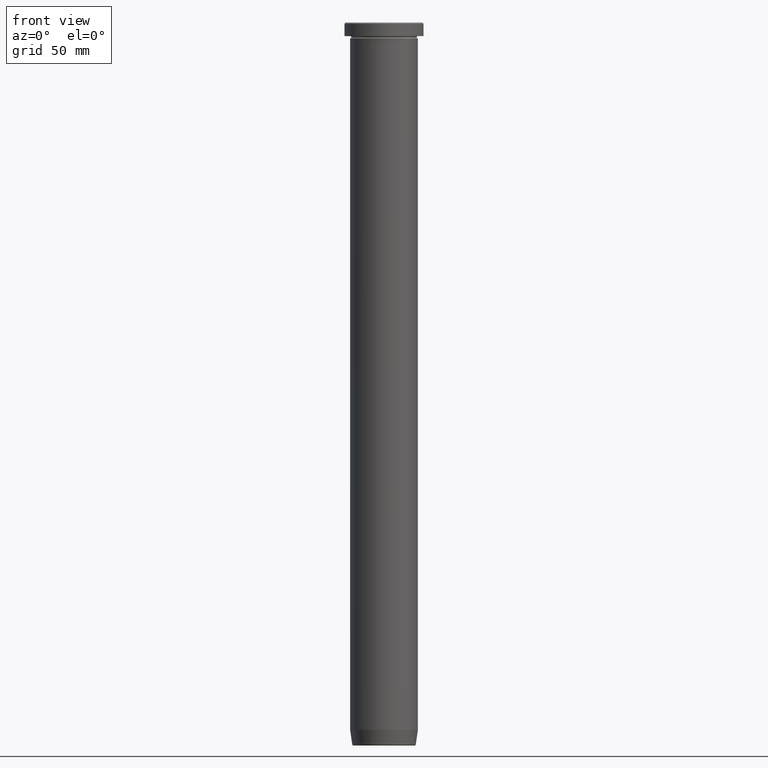
[diagram: clean part render]
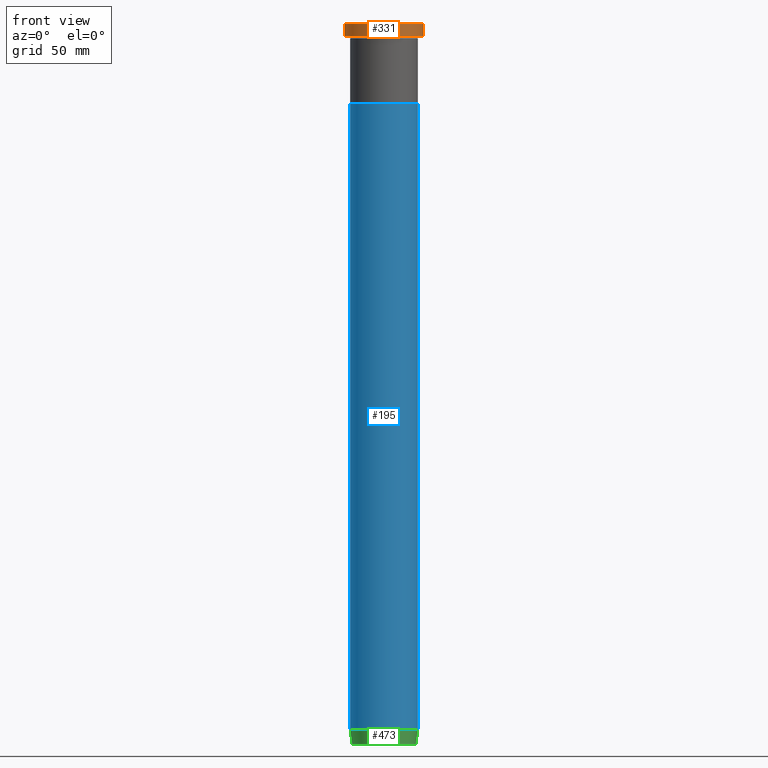
[diagram: same view with three faces highlighted in distinct colors, each labeled with its STEP entity id]
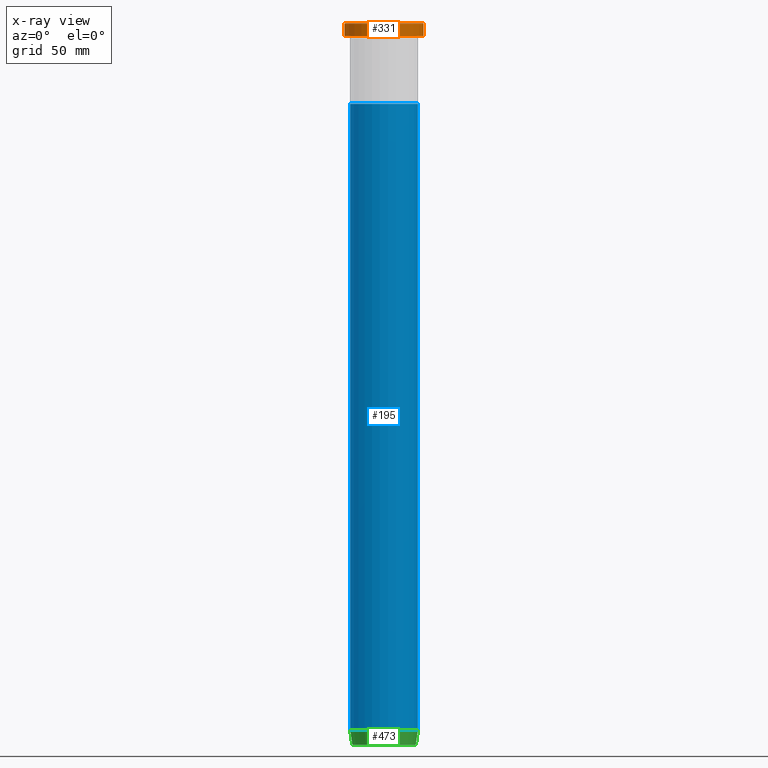
[diagram: x-ray of the same camera — body ghosted, the three highlighted faces saturated]
A machine part, front view with three faces highlighted in distinct colors.
The next image is the same camera in x-ray (body ghosted, the three faces saturated) — at least one of them is partly hidden behind the body in this view.
Their STEP definitions:

[orange] entity #331 — the highlighted cylindrical surface (partial cylindrical patch) has radius 17.5 mm, axis along (-0, -0, 1).
#28 = EDGE_CURVE ( 'NONE', #579, #341, #481, .T. ) ;
#34 = ORIENTED_EDGE ( 'NONE', *, *, #387, .T. ) ;
#40 = LINE ( 'NONE', #320, #163 ) ;
#64 = CARTESIAN_POINT ( 'NONE',  ( -17.50000000000000000, 2.143131898507868248E-15, 0.000000000000000000 ) ) ;
#69 = CARTESIAN_POINT ( 'NONE',  ( -17.50000000000000000, 2.143131898507868248E-15, -5.999999999999999112 ) ) ;
#79 = VERTEX_POINT ( 'NONE', #92 ) ;
#80 = AXIS2_PLACEMENT_3D ( 'NONE', #358, #399, #538 ) ;
#92 = CARTESIAN_POINT ( 'NONE',  ( 17.50000000000000000, 0.000000000000000000, -0.5000000000000073275 ) ) ;
#118 = EDGE_LOOP ( 'NONE', ( #369, #34, #392, #541 ) ) ;
#155 = DIRECTION ( 'NONE',  ( 1.000000000000000000, 0.000000000000000000, 0.000000000000000000 ) ) ;
#163 = VECTOR ( 'NONE', #406, 1000.000000000000000 ) ;
#169 = DIRECTION ( 'NONE',  ( -0.000000000000000000, -0.000000000000000000, 1.000000000000000000 ) ) ;
#180 = FACE_OUTER_BOUND ( 'NONE', #118, .T. ) ;
#186 = CYLINDRICAL_SURFACE ( 'NONE', #198, 17.50000000000000000 ) ;
#198 = AXIS2_PLACEMENT_3D ( 'NONE', #550, #251, #290 ) ;
#246 = CARTESIAN_POINT ( 'NONE',  ( 17.50000000000000000, 0.000000000000000000, -5.999999999999999112 ) ) ;
#251 = DIRECTION ( 'NONE',  ( -0.000000000000000000, -0.000000000000000000, 1.000000000000000000 ) ) ;
#272 = DIRECTION ( 'NONE',  ( 0.000000000000000000, 0.000000000000000000, -1.000000000000000000 ) ) ;
#290 = DIRECTION ( 'NONE',  ( 1.000000000000000000, 0.000000000000000000, 0.000000000000000000 ) ) ;
#315 = CIRCLE ( 'NONE', #586, 17.50000000000000000 ) ;
#320 = CARTESIAN_POINT ( 'NONE',  ( 17.50000000000000000, 0.000000000000000000, 0.000000000000000000 ) ) ;
#331 = ADVANCED_FACE ( 'NONE', ( #180 ), #186, .T. ) ;
#341 = VERTEX_POINT ( 'NONE', #380 ) ;
#344 = VERTEX_POINT ( 'NONE', #246 ) ;
#358 = CARTESIAN_POINT ( 'NONE',  ( 0.000000000000000000, 0.000000000000000000, -5.999999999999999112 ) ) ;
#363 = CARTESIAN_POINT ( 'NONE',  ( 0.000000000000000000, 0.000000000000000000, -0.5000000000000073275 ) ) ;
#369 = ORIENTED_EDGE ( 'NONE', *, *, #28, .F. ) ;
#380 = CARTESIAN_POINT ( 'NONE',  ( -17.50000000000000000, 2.143131898507868248E-15, -0.5000000000000073275 ) ) ;
#387 = EDGE_CURVE ( 'NONE', #579, #344, #453, .T. ) ;
#392 = ORIENTED_EDGE ( 'NONE', *, *, #595, .T. ) ;
#399 = DIRECTION ( 'NONE',  ( -0.000000000000000000, -0.000000000000000000, 1.000000000000000000 ) ) ;
#406 = DIRECTION ( 'NONE',  ( -0.000000000000000000, -0.000000000000000000, 1.000000000000000000 ) ) ;
#409 = VECTOR ( 'NONE', #169, 1000.000000000000000 ) ;
#453 = CIRCLE ( 'NONE', #80, 17.50000000000000000 ) ;
#481 = LINE ( 'NONE', #64, #409 ) ;
#538 = DIRECTION ( 'NONE',  ( 1.000000000000000000, 0.000000000000000000, 0.000000000000000000 ) ) ;
#541 = ORIENTED_EDGE ( 'NONE', *, *, #599, .T. ) ;
#550 = CARTESIAN_POINT ( 'NONE',  ( 0.000000000000000000, 0.000000000000000000, 0.000000000000000000 ) ) ;
#579 = VERTEX_POINT ( 'NONE', #69 ) ;
#586 = AXIS2_PLACEMENT_3D ( 'NONE', #363, #272, #155 ) ;
#595 = EDGE_CURVE ( 'NONE', #344, #79, #40, .T. ) ;
#599 = EDGE_CURVE ( 'NONE', #79, #341, #315, .T. ) ;

[blue] entity #195 — the highlighted cylindrical surface (edge-blend (fillet) strip) has radius 15 mm, axis along (-0, -0, 1).
#3 = DIRECTION ( 'NONE',  ( -0.000000000000000000, -0.000000000000000000, 1.000000000000000000 ) ) ;
#18 = DIRECTION ( 'NONE',  ( -0.000000000000000000, -0.000000000000000000, 1.000000000000000000 ) ) ;
#65 = CARTESIAN_POINT ( 'NONE',  ( 15.00000000000000000, 0.000000000000000000, 0.000000000000000000 ) ) ;
#83 = CARTESIAN_POINT ( 'NONE',  ( 0.000000000000000000, 0.000000000000000000, -36.00000000000000000 ) ) ;
#107 = CARTESIAN_POINT ( 'NONE',  ( 15.00000000000000000, 0.000000000000000000, -36.00000000000000000 ) ) ;
#110 = CARTESIAN_POINT ( 'NONE',  ( -15.00000000000000000, 1.836970198721029589E-15, -312.9999999999999432 ) ) ;
#141 = DIRECTION ( 'NONE',  ( 1.000000000000000000, 0.000000000000000000, 0.000000000000000000 ) ) ;
#157 = ORIENTED_EDGE ( 'NONE', *, *, #497, .T. ) ;
#158 = ORIENTED_EDGE ( 'NONE', *, *, #185, .F. ) ;
#166 = VERTEX_POINT ( 'NONE', #110 ) ;
#173 = VERTEX_POINT ( 'NONE', #107 ) ;
#177 = ORIENTED_EDGE ( 'NONE', *, *, #261, .T. ) ;
#182 = DIRECTION ( 'NONE',  ( -0.000000000000000000, -0.000000000000000000, 1.000000000000000000 ) ) ;
#185 = EDGE_CURVE ( 'NONE', #166, #312, #200, .T. ) ;
#195 = ADVANCED_FACE ( 'NONE', ( #474 ), #206, .T. ) ;
#200 = LINE ( 'NONE', #376, #321 ) ;
#206 = CYLINDRICAL_SURFACE ( 'NONE', #437, 15.00000000000000000 ) ;
#232 = AXIS2_PLACEMENT_3D ( 'NONE', #83, #182, #451 ) ;
#236 = VERTEX_POINT ( 'NONE', #249 ) ;
#238 = DIRECTION ( 'NONE',  ( 1.000000000000000000, 0.000000000000000000, 0.000000000000000000 ) ) ;
#245 = DIRECTION ( 'NONE',  ( -0.000000000000000000, -0.000000000000000000, 1.000000000000000000 ) ) ;
#249 = CARTESIAN_POINT ( 'NONE',  ( 15.00000000000000000, 0.000000000000000000, -312.9999999999999432 ) ) ;
#261 = EDGE_CURVE ( 'NONE', #236, #173, #582, .T. ) ;
#311 = EDGE_LOOP ( 'NONE', ( #158, #157, #177, #558 ) ) ;
#312 = VERTEX_POINT ( 'NONE', #324 ) ;
#321 = VECTOR ( 'NONE', #18, 1000.000000000000000 ) ;
#324 = CARTESIAN_POINT ( 'NONE',  ( -15.00000000000000000, 1.836970198721029589E-15, -36.00000000000000000 ) ) ;
#356 = CIRCLE ( 'NONE', #505, 15.00000000000000000 ) ;
#376 = CARTESIAN_POINT ( 'NONE',  ( -15.00000000000000000, 1.836970198721029589E-15, 0.000000000000000000 ) ) ;
#383 = VECTOR ( 'NONE', #483, 1000.000000000000000 ) ;
#428 = EDGE_CURVE ( 'NONE', #312, #173, #500, .T. ) ;
#437 = AXIS2_PLACEMENT_3D ( 'NONE', #557, #245, #141 ) ;
#451 = DIRECTION ( 'NONE',  ( 1.000000000000000000, 0.000000000000000000, 0.000000000000000000 ) ) ;
#474 = FACE_OUTER_BOUND ( 'NONE', #311, .T. ) ;
#483 = DIRECTION ( 'NONE',  ( -0.000000000000000000, -0.000000000000000000, 1.000000000000000000 ) ) ;
#497 = EDGE_CURVE ( 'NONE', #166, #236, #356, .T. ) ;
#500 = CIRCLE ( 'NONE', #232, 15.00000000000000000 ) ;
#505 = AXIS2_PLACEMENT_3D ( 'NONE', #517, #3, #238 ) ;
#517 = CARTESIAN_POINT ( 'NONE',  ( 0.000000000000000000, 0.000000000000000000, -312.9999999999999432 ) ) ;
#557 = CARTESIAN_POINT ( 'NONE',  ( 0.000000000000000000, 0.000000000000000000, 0.000000000000000000 ) ) ;
#558 = ORIENTED_EDGE ( 'NONE', *, *, #428, .F. ) ;
#582 = LINE ( 'NONE', #65, #383 ) ;

[green] entity #473 — the highlighted conical surface has half-angle 8 deg.
#3 = DIRECTION ( 'NONE',  ( -0.000000000000000000, -0.000000000000000000, 1.000000000000000000 ) ) ;
#13 = CARTESIAN_POINT ( 'NONE',  ( 0.000000000000000000, 0.000000000000000000, -319.9999999999999432 ) ) ;
#30 = ORIENTED_EDGE ( 'NONE', *, *, #43, .T. ) ;
#43 = EDGE_CURVE ( 'NONE', #471, #236, #209, .T. ) ;
#50 = CARTESIAN_POINT ( 'NONE',  ( -14.07670482254592592, 1.780434674534163799E-15, -319.5695865504799826 ) ) ;
#52 = CARTESIAN_POINT ( 'NONE',  ( -14.01621415708325280, 1.716491180363582438E-15, -319.9999999999999432 ) ) ;
#53 = CARTESIAN_POINT ( 'NONE',  ( 14.07670482254592592, 0.000000000000000000, -319.5695865504799826 ) ) ;
#62 = EDGE_CURVE ( 'NONE', #476, #471, #449, .T. ) ;
#71 = ORIENTED_EDGE ( 'NONE', *, *, #497, .F. ) ;
#110 = CARTESIAN_POINT ( 'NONE',  ( -15.00000000000000000, 1.836970198721029589E-15, -312.9999999999999432 ) ) ;
#133 = EDGE_CURVE ( 'NONE', #476, #166, #247, .T. ) ;
#166 = VERTEX_POINT ( 'NONE', #110 ) ;
#209 = LINE ( 'NONE', #359, #365 ) ;
#236 = VERTEX_POINT ( 'NONE', #249 ) ;
#238 = DIRECTION ( 'NONE',  ( 1.000000000000000000, 0.000000000000000000, 0.000000000000000000 ) ) ;
#247 = LINE ( 'NONE', #52, #463 ) ;
#249 = CARTESIAN_POINT ( 'NONE',  ( 15.00000000000000000, 0.000000000000000000, -312.9999999999999432 ) ) ;
#254 = ORIENTED_EDGE ( 'NONE', *, *, #62, .T. ) ;
#262 = AXIS2_PLACEMENT_3D ( 'NONE', #545, #264, #455 ) ;
#264 = DIRECTION ( 'NONE',  ( -0.000000000000000000, -0.000000000000000000, 1.000000000000000000 ) ) ;
#268 = CONICAL_SURFACE ( 'NONE', #394, 14.01621415708325280, 0.1396263401595470577 ) ;
#285 = DIRECTION ( 'NONE',  ( -0.000000000000000000, -0.000000000000000000, 1.000000000000000000 ) ) ;
#327 = ORIENTED_EDGE ( 'NONE', *, *, #133, .F. ) ;
#336 = DIRECTION ( 'NONE',  ( -0.1391731009600661317, 1.704378926181564302E-17, 0.9902680687415702510 ) ) ;
#350 = EDGE_LOOP ( 'NONE', ( #327, #254, #30, #71 ) ) ;
#356 = CIRCLE ( 'NONE', #505, 15.00000000000000000 ) ;
#359 = CARTESIAN_POINT ( 'NONE',  ( 14.01621415708325280, 0.000000000000000000, -319.9999999999999432 ) ) ;
#365 = VECTOR ( 'NONE', #446, 1000.000000000000000 ) ;
#371 = FACE_OUTER_BOUND ( 'NONE', #350, .T. ) ;
#394 = AXIS2_PLACEMENT_3D ( 'NONE', #13, #285, #410 ) ;
#410 = DIRECTION ( 'NONE',  ( 1.000000000000000000, 0.000000000000000000, 0.000000000000000000 ) ) ;
#446 = DIRECTION ( 'NONE',  ( 0.1391731009600661317, 0.000000000000000000, 0.9902680687415702510 ) ) ;
#449 = CIRCLE ( 'NONE', #262, 14.07670482254592592 ) ;
#455 = DIRECTION ( 'NONE',  ( -1.000000000000000000, 0.000000000000000000, 0.000000000000000000 ) ) ;
#463 = VECTOR ( 'NONE', #336, 1000.000000000000000 ) ;
#471 = VERTEX_POINT ( 'NONE', #53 ) ;
#473 = ADVANCED_FACE ( 'NONE', ( #371 ), #268, .T. ) ;
#476 = VERTEX_POINT ( 'NONE', #50 ) ;
#497 = EDGE_CURVE ( 'NONE', #166, #236, #356, .T. ) ;
#505 = AXIS2_PLACEMENT_3D ( 'NONE', #517, #3, #238 ) ;
#517 = CARTESIAN_POINT ( 'NONE',  ( 0.000000000000000000, 0.000000000000000000, -312.9999999999999432 ) ) ;
#545 = CARTESIAN_POINT ( 'NONE',  ( 0.000000000000000000, 0.000000000000000000, -319.5695865504799826 ) ) ;